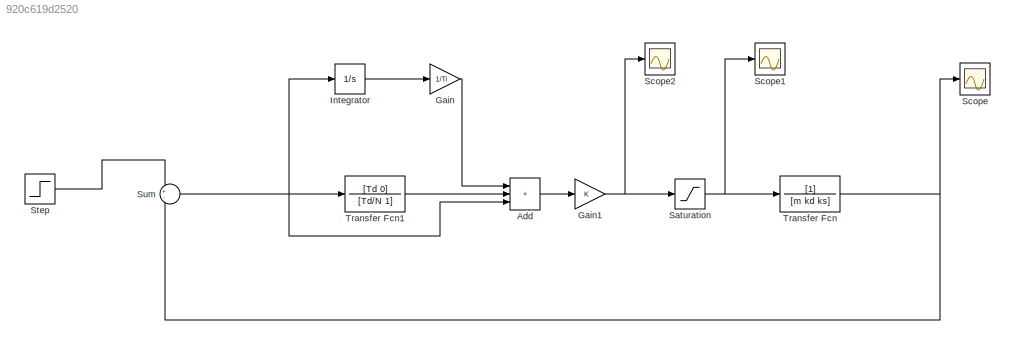
MODEL slx_920c619d2520
KIND model
CONFIG AbsTol = auto
CONFIG EnableMultiTasking = off
CONFIG FixedStep = auto
CONFIG MaxStep = auto
CONFIG MinStep = auto
CONFIG RelTol = 1e-3
CONFIG SampleTimeConstraint = Unconstrained
CONFIG SolverName = VariableStepAuto
CONFIG StartTime = 0.0
CONFIG StopTime = 10.0
BLOCK [Sum] Add
  IconShape = rectangular
  Inputs = +++
BLOCK [Gain] Gain
  Gain = 1/Ti
BLOCK [Gain] Gain1
  Gain = K
BLOCK [Integrator] Integrator
BLOCK [Saturate] Saturation
  LowerLimit = -50
  UpperLimit = 50
BLOCK [Scope] Scope
  Floating = off
  NumInputPorts = 1
  ScopeSpecificationString = Simulink.scopes.TimeScopeBlockCfg('CurrentConfiguration', extmgr.ConfigurationSet(extmgr.Configuration('Core','General UI',true),extmgr.Configuration('Core','Source UI',true),extmgr.Configuration('Sources','WiredSimulink',true),extmgr.Configuration('Visuals','Time Domain',true,'SerializedDisplays',{struct('MinYLimReal','-0.13459','MaxYLimReal','1.21131','YLabelReal','','MinYLimMag','0.00000','MaxY...<+1463ch>
BLOCK [Scope] Scope1
  Floating = off
  NumInputPorts = 1
  ScopeSpecificationString = Simulink.scopes.TimeScopeBlockCfg('CurrentConfiguration', extmgr.ConfigurationSet(extmgr.Configuration('Core','General UI',true),extmgr.Configuration('Core','Source UI',true),extmgr.Configuration('Sources','WiredSimulink',true,'DataLoggingVariableName','ScopeData1'),extmgr.Configuration('Visuals','Time Domain',true,'SerializedDisplays',{struct('MinYLimReal','-62.5','MaxYLimReal','62.5','YLabelReal...<+1482ch>
BLOCK [Scope] Scope2
  Floating = off
  NumInputPorts = 1
  ScopeSpecificationString = Simulink.scopes.TimeScopeBlockCfg('CurrentConfiguration', extmgr.ConfigurationSet(extmgr.Configuration('Core','General UI',true),extmgr.Configuration('Core','Source UI',true),extmgr.Configuration('Sources','WiredSimulink',true,'DataLoggingVariableName','ScopeData2'),extmgr.Configuration('Visuals','Time Domain',true,'SerializedDisplays',{struct('MinYLimReal','-1534.12581','MaxYLimReal','12392.68065...<+1521ch>
BLOCK [Step] Step
  SampleTime = 0
BLOCK [Sum] Sum
  Inputs = +-
BLOCK [TransferFcn] Transfer Fcn
  Denominator = [m kd ks]
BLOCK [TransferFcn] Transfer Fcn1
  Denominator = [Td/N 1]
  Numerator = [Td 0]
LINE Add:1 -> Gain1:1
NET Gain1:1 -> Saturation:1, Scope2:1
LINE Gain:1 -> Add:1
LINE Integrator:1 -> Gain:1
NET Saturation:1 -> Scope1:1, Transfer Fcn:1
LINE Step:1 -> Sum:1
NET Sum:1 -> Add:3, Integrator:1, Transfer Fcn1:1
LINE Transfer Fcn1:1 -> Add:2
NET Transfer Fcn:1 -> Scope:1, Sum:2
note: NET lines group one-source signal fan-out (src -> all destinations, sorted); 1:1 wires keep LINE
